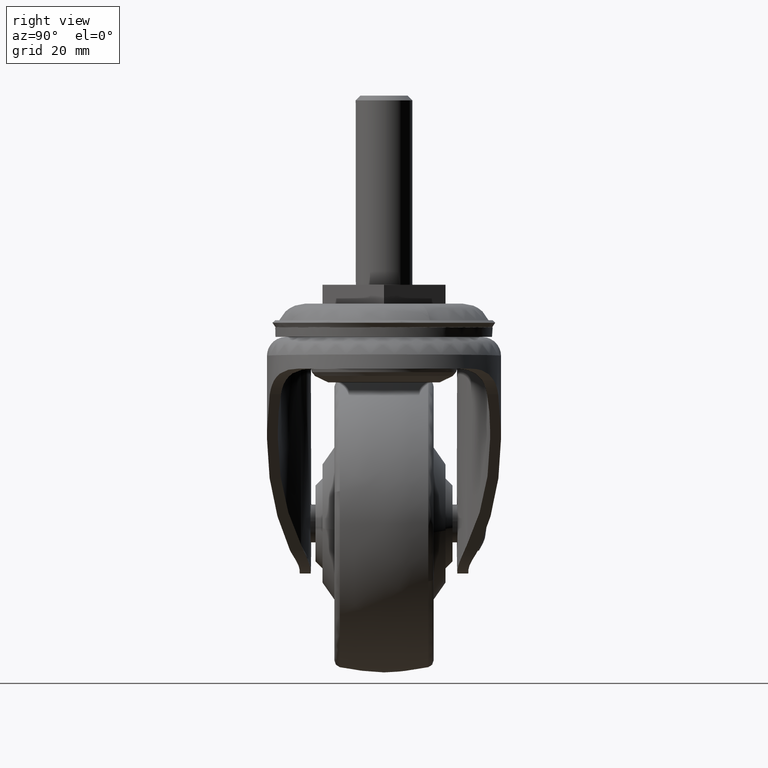
[diagram: clean part render]
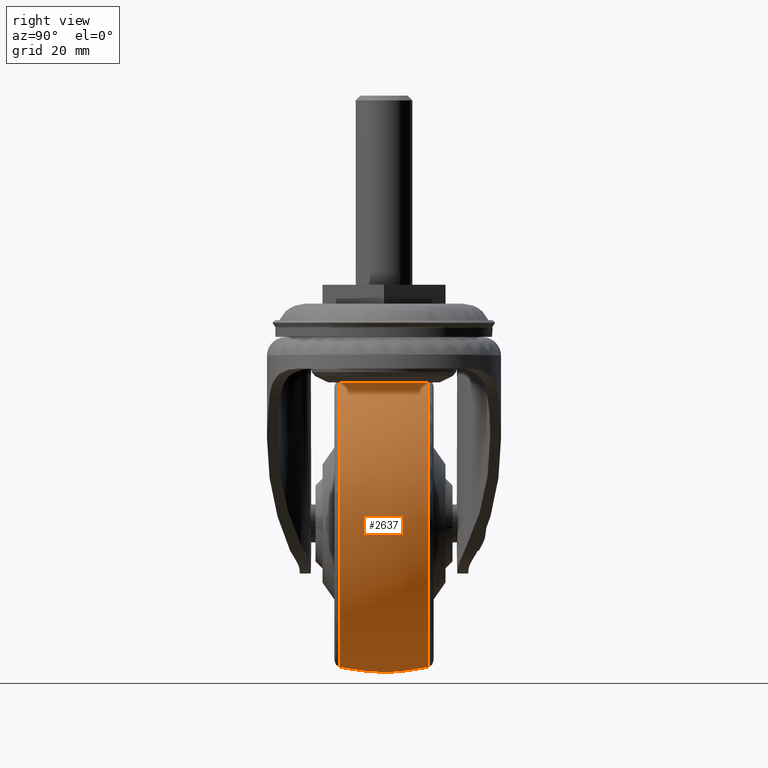
[diagram: same view with one face highlighted and labeled with its STEP entity id]
A machine part, right view. The second image highlights one B-rep face of the part: STEP entity #2637.
In plain terms, the highlighted face is a freeform B-spline surface patch.
Its self-contained STEP definition (entity closure, byte-faithful):
#1680=CARTESIAN_POINT('',(-16.501288688309540,-9.350649236317166,-75.679341560785872));
#1681=VERTEX_POINT('',#1680);
#1682=CARTESIAN_POINT('',(4.617541750754754,-9.350645719213647,-39.684127232712271));
#1683=VERTEX_POINT('',#1682);
#1684=CARTESIAN_POINT('',(-16.501288688309547,-9.350649236317166,-75.679341560785872));
#1685=CARTESIAN_POINT('',(5.391713214015146,-9.350648593897850,-69.302811601292206));
#1686=CARTESIAN_POINT('',(5.391713214015149,-9.350646320082650,-46.500099271367993));
#1687=CARTESIAN_POINT('',(5.391713214015149,-9.350645975864788,-43.048147293850647));
#1688=CARTESIAN_POINT('',(4.617541750754754,-9.350645719213647,-39.684127232712271));
#1696=(BOUNDED_CURVE()B_SPLINE_CURVE(2,(#1684,#1685,#1686,#1687,#1688),.UNSPECIFIED.,.F.,.U.)B_SPLINE_CURVE_WITH_KNOTS((3,2,3),(0.047625444915104,0.250000000000000,0.288352907710231),.UNSPECIFIED.)CURVE()GEOMETRIC_REPRESENTATION_ITEM()RATIONAL_B_SPLINE_CURVE((0.909665374593941,0.762903460620977,1.0,0.955066773639581,0.923920106348954))REPRESENTATION_ITEM(''));
#1697=EDGE_CURVE('',#1681,#1683,#1696,.T.);
#1782=CARTESIAN_POINT('',(-25.0,-9.350649350649370,-76.891813214015158));
#1783=VERTEX_POINT('',#1782);
#1784=CARTESIAN_POINT('',(-25.0,-9.350649350649370,-76.891813214015158));
#1785=CARTESIAN_POINT('',(-20.664155499812203,-9.350649350649370,-76.891813214015173));
#1786=CARTESIAN_POINT('',(-16.501288688309547,-9.350649236317166,-75.679341560785872));
#1794=(BOUNDED_CURVE()B_SPLINE_CURVE(2,(#1784,#1785,#1786),.UNSPECIFIED.,.F.,.U.)B_SPLINE_CURVE_WITH_KNOTS((3,3),(0.0,0.047625444915104),.UNSPECIFIED.)CURVE()GEOMETRIC_REPRESENTATION_ITEM()RATIONAL_B_SPLINE_CURVE((1.0,0.944203320565570,0.909665374593941))REPRESENTATION_ITEM(''));
#1795=EDGE_CURVE('',#1783,#1681,#1794,.T.);
#1844=CARTESIAN_POINT('',(-25.0,-9.350643289515929,-16.108385328720829));
#1845=VERTEX_POINT('',#1844);
#1846=CARTESIAN_POINT('',(4.617541750754754,-9.350645719213647,-39.684127232712271));
#1847=CARTESIAN_POINT('',(-0.808013185408518,-9.350643289515929,-16.108385328720832));
#1848=CARTESIAN_POINT('',(-25.0,-9.350643289515929,-16.108385328720829));
#1856=(BOUNDED_CURVE()B_SPLINE_CURVE(2,(#1846,#1847,#1848),.UNSPECIFIED.,.F.,.U.)B_SPLINE_CURVE_WITH_KNOTS((3,3),(0.288352907710231,0.500000000000000),.UNSPECIFIED.)CURVE()GEOMETRIC_REPRESENTATION_ITEM()RATIONAL_B_SPLINE_CURVE((0.923920106348954,0.752040007546967,1.0))REPRESENTATION_ITEM(''));
#1857=EDGE_CURVE('',#1683,#1845,#1856,.T.);
#1859=CARTESIAN_POINT('',(-55.188443204007363,-9.350654807076921,-42.990962034540580));
#1860=VERTEX_POINT('',#1859);
#1874=CARTESIAN_POINT('',(-55.188443204007349,-9.350654807076921,-42.990962034540580));
#1875=CARTESIAN_POINT('',(-55.391711944515130,-9.350654666349543,-44.739643864684666));
#1876=CARTESIAN_POINT('',(-55.391711982256773,-9.350654508316298,-46.500100143180958));
#1877=CARTESIAN_POINT('',(-55.391712633811082,-9.350651780102524,-76.891813281458695));
#1878=CARTESIAN_POINT('',(-25.0,-9.350649350649370,-76.891813214015158));
#1886=(BOUNDED_CURVE()B_SPLINE_CURVE(2,(#1874,#1875,#1876,#1877,#1878),.UNSPECIFIED.,.F.,.U.)B_SPLINE_CURVE_WITH_KNOTS((3,2,3),(0.730000098770940,0.750000000000000,1.0),.UNSPECIFIED.)CURVE()GEOMETRIC_REPRESENTATION_ITEM()RATIONAL_B_SPLINE_CURVE((0.956886312595907,0.976568658212278,1.0,0.707106781186548,1.0))REPRESENTATION_ITEM(''));
#1887=EDGE_CURVE('',#1860,#1783,#1886,.T.);
#2345=CARTESIAN_POINT('',(2.821780564543220,9.350642530186100,-58.731403499353512));
#2346=VERTEX_POINT('',#2345);
#2347=CARTESIAN_POINT('',(-25.0,9.350625611895524,-16.108381078543630));
#2348=VERTEX_POINT('',#2347);
#2349=CARTESIAN_POINT('',(2.821780564543220,9.350642530186100,-58.731403499353526));
#2350=CARTESIAN_POINT('',(5.391714177819621,9.350640228528016,-52.885736423962356));
#2351=CARTESIAN_POINT('',(5.391714069112056,9.350637706062134,-46.500097522206012));
#2352=CARTESIAN_POINT('',(5.391713551730858,9.350625700674952,-16.108381227013734));
#2353=CARTESIAN_POINT('',(-25.0,9.350625611895524,-16.108381078543630));
#2361=(BOUNDED_CURVE()B_SPLINE_CURVE(2,(#2349,#2350,#2351,#2352,#2353),.UNSPECIFIED.,.F.,.U.)B_SPLINE_CURVE_WITH_KNOTS((3,2,3),(0.181662002411756,0.250000000000000,0.500000000000000),.UNSPECIFIED.)CURVE()GEOMETRIC_REPRESENTATION_ITEM()RATIONAL_B_SPLINE_CURVE((0.883644841721628,0.919937055676453,1.0,0.707106781186548,1.0))REPRESENTATION_ITEM(''));
#2362=EDGE_CURVE('',#2346,#2348,#2361,.T.);
#2465=CARTESIAN_POINT('',(-25.0,9.350649350649350,-76.891813214015158));
#2466=VERTEX_POINT('',#2465);
#2467=CARTESIAN_POINT('',(-25.0,9.350649350649350,-76.891813214015158));
#2468=CARTESIAN_POINT('',(-5.162090649106818,9.350649486659608,-76.891813441471641));
#2469=CARTESIAN_POINT('',(2.821780564543220,9.350642530186100,-58.731403499353512));
#2477=(BOUNDED_CURVE()B_SPLINE_CURVE(2,(#2467,#2468,#2469),.UNSPECIFIED.,.F.,.U.)B_SPLINE_CURVE_WITH_KNOTS((3,3),(0.0,0.181662002411756),.UNSPECIFIED.)CURVE()GEOMETRIC_REPRESENTATION_ITEM()RATIONAL_B_SPLINE_CURVE((1.0,0.787169725510094,0.883644841721628))REPRESENTATION_ITEM(''));
#2478=EDGE_CURVE('',#2466,#2346,#2477,.T.);
#2480=CARTESIAN_POINT('',(-55.188447359018092,9.350637310705302,-42.990961346960923));
#2481=VERTEX_POINT('',#2480);
#2482=CARTESIAN_POINT('',(-55.188447359018085,9.350637310705302,-42.990961346960908));
#2483=CARTESIAN_POINT('',(-55.391716015223743,9.350637621228957,-44.739643289545924));
#2484=CARTESIAN_POINT('',(-55.391715931945143,9.350637969939083,-46.500099684064793));
#2485=CARTESIAN_POINT('',(-55.391714494261372,9.350643989911108,-76.891813065197894));
#2486=CARTESIAN_POINT('',(-25.0,9.350649350649350,-76.891813214015158));
#2494=(BOUNDED_CURVE()B_SPLINE_CURVE(2,(#2482,#2483,#2484,#2485,#2486),.UNSPECIFIED.,.F.,.U.)B_SPLINE_CURVE_WITH_KNOTS((3,2,3),(0.730000097639806,0.750000000000000,1.0),.UNSPECIFIED.)CURVE()GEOMETRIC_REPRESENTATION_ITEM()RATIONAL_B_SPLINE_CURVE((0.956886310369558,0.976568656887072,1.0,0.707106781186548,1.0))REPRESENTATION_ITEM(''));
#2495=EDGE_CURVE('',#2481,#2466,#2494,.T.);
#2545=CARTESIAN_POINT('',(-54.950382774429684,-10.296552463713244,-43.018617465868367));
#2546=CARTESIAN_POINT('',(-56.289316711442147,-5.236508088010933,-42.862977547969066));
#2547=CARTESIAN_POINT('',(-56.289316711442147,6.980275E-015,-42.862977547969066));
#2548=CARTESIAN_POINT('',(-56.289316711442133,5.236506450560968,-42.862977547969052));
#2549=CARTESIAN_POINT('',(-54.950383597686638,10.296549352493750,-43.018617370171611));
#2550=CARTESIAN_POINT('',(-55.152050493628408,-10.296552463713244,-44.753517849263488));
#2551=CARTESIAN_POINT('',(-56.499999999999993,-5.236508088010933,-44.675436773204659));
#2552=CARTESIAN_POINT('',(-56.499999999999993,6.980275E-015,-44.675436773204666));
#2553=CARTESIAN_POINT('',(-56.500000000000000,5.236506450560969,-44.675436773204673));
#2554=CARTESIAN_POINT('',(-55.152051322428683,10.296549352493747,-44.753517801254567));
#2555=CARTESIAN_POINT('',(-55.152050493628401,-10.296552463713242,-46.500099999999996));
#2556=CARTESIAN_POINT('',(-56.499999999999993,-5.236508088010932,-46.500100000000003));
#2557=CARTESIAN_POINT('',(-56.500000000000000,6.980275E-015,-46.500100000000003));
#2558=CARTESIAN_POINT('',(-56.499999999999993,5.236506450560967,-46.500100000000003));
#2559=CARTESIAN_POINT('',(-55.152051322428676,10.296549352493745,-46.500100000000003));
#2560=CARTESIAN_POINT('',(-55.152050493628437,-10.296552463713244,-76.652150493628397));
#2561=CARTESIAN_POINT('',(-56.500000000000007,-5.236508088010933,-78.000099999999989));
#2562=CARTESIAN_POINT('',(-56.500000000000000,6.980275E-015,-78.000099999999989));
#2563=CARTESIAN_POINT('',(-56.499999999999993,5.236506450560968,-78.000099999999989));
#2564=CARTESIAN_POINT('',(-55.152051322428669,10.296549352493745,-76.652151322428665));
#2565=CARTESIAN_POINT('',(-25.0,-10.296552463713242,-76.652150493628426));
#2566=CARTESIAN_POINT('',(-25.000000000000004,-5.236508088010932,-78.000100000000003));
#2567=CARTESIAN_POINT('',(-25.0,6.980275E-015,-78.000100000000003));
#2568=CARTESIAN_POINT('',(-25.0,5.236506450560967,-78.000100000000003));
#2569=CARTESIAN_POINT('',(-24.999999999999996,10.296549352493745,-76.652151322428679));
#2570=CARTESIAN_POINT('',(5.152050493628413,-10.296552463713244,-76.652150493628397));
#2571=CARTESIAN_POINT('',(6.499999999999997,-5.236508088010933,-78.000099999999989));
#2572=CARTESIAN_POINT('',(6.499999999999996,6.980275E-015,-78.000099999999989));
#2573=CARTESIAN_POINT('',(6.499999999999997,5.236506450560968,-78.000099999999989));
#2574=CARTESIAN_POINT('',(5.152051322428679,10.296549352493745,-76.652151322428665));
#2575=CARTESIAN_POINT('',(5.152050493628413,-10.296552463713242,-46.500099999999996));
#2576=CARTESIAN_POINT('',(6.499999999999998,-5.236508088010932,-46.500100000000003));
#2577=CARTESIAN_POINT('',(6.499999999999999,6.980275E-015,-46.500100000000003));
#2578=CARTESIAN_POINT('',(6.499999999999998,5.236506450560967,-46.500100000000003));
#2579=CARTESIAN_POINT('',(5.152051322428679,10.296549352493745,-46.500100000000003));
#2580=CARTESIAN_POINT('',(5.152050493628413,-10.296552463713244,-16.348049506371574));
#2581=CARTESIAN_POINT('',(6.499999999999997,-5.236508088010933,-15.000100000000000));
#2582=CARTESIAN_POINT('',(6.499999999999996,6.980275E-015,-15.000099999999996));
#2583=CARTESIAN_POINT('',(6.499999999999997,5.236506450560968,-15.000099999999998));
#2584=CARTESIAN_POINT('',(5.152051322428679,10.296549352493745,-16.348048677571317));
#2585=CARTESIAN_POINT('',(-25.0,-10.296552463713242,-16.348049506371584));
#2586=CARTESIAN_POINT('',(-25.000000000000004,-5.236508088010932,-15.000100000000005));
#2587=CARTESIAN_POINT('',(-25.0,6.980275E-015,-15.000100000000000));
#2588=CARTESIAN_POINT('',(-25.0,5.236506450560967,-15.000100000000005));
#2589=CARTESIAN_POINT('',(-24.999999999999996,10.296549352493745,-16.348048677571324));
#2597=(BOUNDED_SURFACE()B_SPLINE_SURFACE(2,2,((#2545,#2550,#2555,#2560,#2565,#2570,#2575,#2580,#2585),(#2546,#2551,#2556,#2561,#2566,#2571,#2576,#2581,#2586),(#2547,#2552,#2557,#2562,#2567,#2572,#2577,#2582,#2587),(#2548,#2553,#2558,#2563,#2568,#2573,#2578,#2583,#2588),(#2549,#2554,#2559,#2564,#2569,#2574,#2579,#2584,#2589)),.UNSPECIFIED.,.F.,.F.,.U.)B_SPLINE_SURFACE_WITH_KNOTS((3,2,3),(3,2,2,2,3),(0.0,10.772107292077131,21.544211364434251),(0.0,4.175271837691034,56.366180696701008,108.557089555711000,160.747998414720910),.UNSPECIFIED.)GEOMETRIC_REPRESENTATION_ITEM()RATIONAL_B_SPLINE_SURFACE(((0.889247244487393,0.907538385030279,0.929313551477972,0.657123914098628,0.929313551477972,0.657123914098628,0.929313551477972,0.657123914098628,0.929313551477972),(0.914642598254889,0.933456101940059,0.955853129246713,0.675890229508732,0.955853129246713,0.675890229508732,0.955853129246713,0.675890229508732,0.955853129246713),(0.956886126402807,0.976568547383107,1.0,0.707106781186548,1.0,0.707106781186548,1.0,0.707106781186548,1.0),(0.914642610881233,0.933456114826117,0.955853142441955,0.675890238839177,0.955853142441955,0.675890238839177,0.955853142441955,0.675890238839177,0.955853142441955),(0.889247259668440,0.907538400523589,0.929313567343024,0.657123925316913,0.929313567343024,0.657123925316913,0.929313567343024,0.657123925316913,0.929313567343024)))REPRESENTATION_ITEM('')SURFACE());
#2598=ORIENTED_EDGE('',*,*,#1887,.F.);
#2599=CARTESIAN_POINT('',(-55.188443204007363,-9.350654807076921,-42.990962034540580));
#2600=CARTESIAN_POINT('',(-56.289318664957186,-4.741007429868559,-42.862994353690823));
#2601=CARTESIAN_POINT('',(-56.289318659008124,-1.449007E-013,-42.862994302515204));
#2602=CARTESIAN_POINT('',(-56.289318653059084,4.740998305989738,-42.862994251339686));
#2603=CARTESIAN_POINT('',(-55.188447359018085,9.350637310705302,-42.990961346960916));
#2611=(BOUNDED_CURVE()B_SPLINE_CURVE(2,(#2599,#2600,#2601,#2602,#2603),.UNSPECIFIED.,.F.,.U.)B_SPLINE_CURVE_WITH_KNOTS((3,2,3),(0.409347551643326,0.500000000000000,0.590652280901874),.UNSPECIFIED.)CURVE()GEOMETRIC_REPRESENTATION_ITEM()RATIONAL_B_SPLINE_CURVE((0.893999356544909,0.918479413794059,0.956886118190660,0.918479484739600,0.893999446984943))REPRESENTATION_ITEM(''));
#2612=EDGE_CURVE('',#1860,#2481,#2611,.T.);
#2613=ORIENTED_EDGE('',*,*,#2612,.T.);
#2614=ORIENTED_EDGE('',*,*,#2495,.T.);
#2615=ORIENTED_EDGE('',*,*,#2478,.T.);
#2616=ORIENTED_EDGE('',*,*,#2362,.T.);
#2617=CARTESIAN_POINT('',(-25.000000000000004,-9.350643289515929,-16.108385328720821));
#2618=CARTESIAN_POINT('',(-25.000000000000011,-4.741001423775680,-15.000100000000009));
#2619=CARTESIAN_POINT('',(-25.0,6.980275E-015,-15.000100000000000));
#2620=CARTESIAN_POINT('',(-25.000000000000004,4.740992205382562,-15.000100000000007));
#2621=CARTESIAN_POINT('',(-25.000000000000007,9.350625611895524,-16.108381078543637));
#2629=(BOUNDED_CURVE()B_SPLINE_CURVE(2,(#2617,#2618,#2619,#2620,#2621),.UNSPECIFIED.,.F.,.U.)B_SPLINE_CURVE_WITH_KNOTS((3,2,3),(0.409347661875970,0.500000000000000,0.590652168934542),.UNSPECIFIED.)CURVE()GEOMETRIC_REPRESENTATION_ITEM()RATIONAL_B_SPLINE_CURVE((0.934279846979558,0.959862875044126,1.0,0.959862949954270,0.934279942473659))REPRESENTATION_ITEM(''));
#2630=EDGE_CURVE('',#1845,#2348,#2629,.T.);
#2631=ORIENTED_EDGE('',*,*,#2630,.F.);
#2632=ORIENTED_EDGE('',*,*,#1857,.F.);
#2633=ORIENTED_EDGE('',*,*,#1697,.F.);
#2634=ORIENTED_EDGE('',*,*,#1795,.F.);
#2635=EDGE_LOOP('',(#2598,#2613,#2614,#2615,#2616,#2631,#2632,#2633,#2634));
#2636=FACE_OUTER_BOUND('',#2635,.T.);
#2637=ADVANCED_FACE('',(#2636),#2597,.T.);